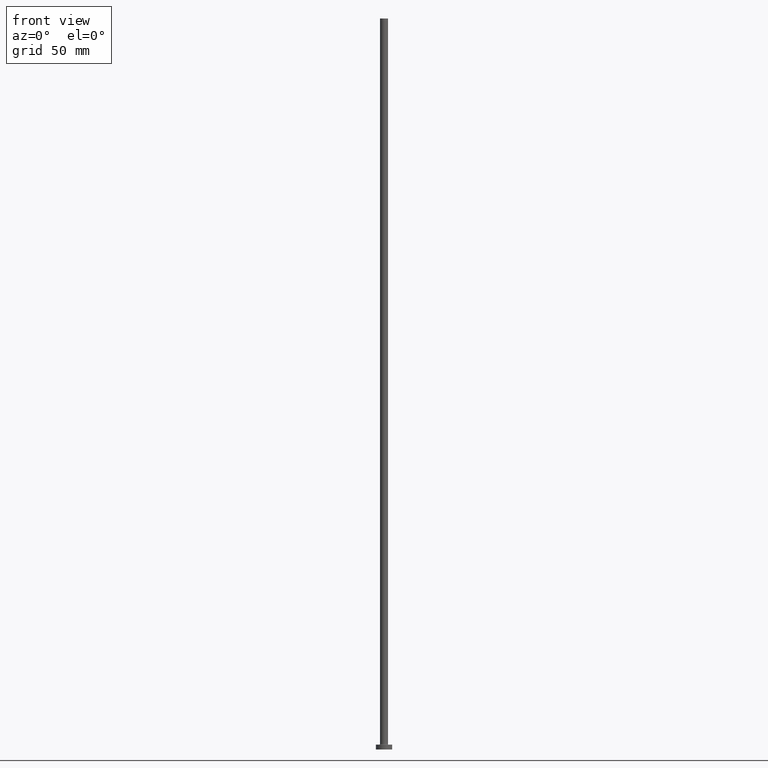
[diagram: clean part render]
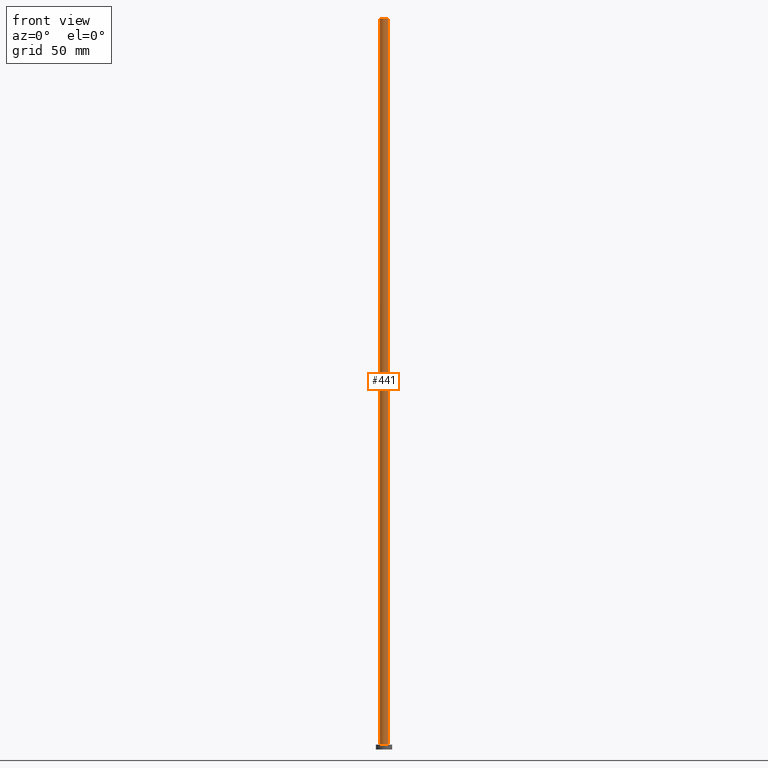
[diagram: same view with one face highlighted and labeled with its STEP entity id]
A machine part, front view. The second image highlights one B-rep face of the part: STEP entity #441.
In plain terms, the highlighted cylindrical surface (edge-blend (fillet) strip) has radius 2.5 mm, axis along (-0, -0, -1).
Its self-contained STEP definition (entity closure, byte-faithful):
#3 = AXIS2_PLACEMENT_3D ( 'NONE', #295, #426, #432 ) ;
#17 = ORIENTED_EDGE ( 'NONE', *, *, #177, .F. ) ;
#27 = CARTESIAN_POINT ( 'NONE',  ( -2.500000000000000000, 0.000000000000000000, 450.0000000000000000 ) ) ;
#34 = DIRECTION ( 'NONE',  ( -0.000000000000000000, -0.000000000000000000, -1.000000000000000000 ) ) ;
#40 = CARTESIAN_POINT ( 'NONE',  ( 0.000000000000000000, 0.000000000000000000, 3.300000000000025135 ) ) ;
#41 = DIRECTION ( 'NONE',  ( 0.000000000000000000, 0.000000000000000000, 1.000000000000000000 ) ) ;
#79 = CIRCLE ( 'NONE', #3, 2.500000000000000000 ) ;
#106 = CARTESIAN_POINT ( 'NONE',  ( 2.500000000000000000, 3.061616997868383141E-16, 450.0000000000000000 ) ) ;
#112 = DIRECTION ( 'NONE',  ( 1.000000000000000000, 0.000000000000000000, 0.000000000000000000 ) ) ;
#139 = DIRECTION ( 'NONE',  ( -0.000000000000000000, -0.000000000000000000, -1.000000000000000000 ) ) ;
#161 = LINE ( 'NONE', #270, #315 ) ;
#175 = AXIS2_PLACEMENT_3D ( 'NONE', #459, #34, #404 ) ;
#177 = EDGE_CURVE ( 'NONE', #281, #418, #161, .T. ) ;
#188 = VERTEX_POINT ( 'NONE', #342 ) ;
#232 = LINE ( 'NONE', #411, #439 ) ;
#238 = AXIS2_PLACEMENT_3D ( 'NONE', #40, #41, #112 ) ;
#246 = VERTEX_POINT ( 'NONE', #27 ) ;
#248 = CARTESIAN_POINT ( 'NONE',  ( 2.500000000000000000, 3.061616997868383141E-16, 3.300000000000025135 ) ) ;
#262 = FACE_OUTER_BOUND ( 'NONE', #450, .T. ) ;
#270 = CARTESIAN_POINT ( 'NONE',  ( 2.500000000000000000, 3.061616997868383141E-16, 450.0000000000000000 ) ) ;
#281 = VERTEX_POINT ( 'NONE', #106 ) ;
#295 = CARTESIAN_POINT ( 'NONE',  ( 0.000000000000000000, 0.000000000000000000, 450.0000000000000000 ) ) ;
#302 = DIRECTION ( 'NONE',  ( -0.000000000000000000, -0.000000000000000000, -1.000000000000000000 ) ) ;
#315 = VECTOR ( 'NONE', #139, 1000.000000000000000 ) ;
#332 = CYLINDRICAL_SURFACE ( 'NONE', #175, 2.500000000000000000 ) ;
#333 = EDGE_CURVE ( 'NONE', #246, #188, #232, .T. ) ;
#340 = ORIENTED_EDGE ( 'NONE', *, *, #333, .T. ) ;
#342 = CARTESIAN_POINT ( 'NONE',  ( -2.500000000000000000, 0.000000000000000000, 3.300000000000025135 ) ) ;
#404 = DIRECTION ( 'NONE',  ( -1.000000000000000000, 0.000000000000000000, 0.000000000000000000 ) ) ;
#405 = CIRCLE ( 'NONE', #238, 2.500000000000000000 ) ;
#411 = CARTESIAN_POINT ( 'NONE',  ( -2.500000000000000000, 0.000000000000000000, 450.0000000000000000 ) ) ;
#418 = VERTEX_POINT ( 'NONE', #248 ) ;
#421 = EDGE_CURVE ( 'NONE', #246, #281, #79, .T. ) ;
#422 = ORIENTED_EDGE ( 'NONE', *, *, #437, .T. ) ;
#426 = DIRECTION ( 'NONE',  ( 0.000000000000000000, 0.000000000000000000, 1.000000000000000000 ) ) ;
#432 = DIRECTION ( 'NONE',  ( 1.000000000000000000, 0.000000000000000000, 0.000000000000000000 ) ) ;
#437 = EDGE_CURVE ( 'NONE', #188, #418, #405, .T. ) ;
#439 = VECTOR ( 'NONE', #302, 1000.000000000000000 ) ;
#441 = ADVANCED_FACE ( 'NONE', ( #262 ), #332, .T. ) ;
#444 = ORIENTED_EDGE ( 'NONE', *, *, #421, .F. ) ;
#450 = EDGE_LOOP ( 'NONE', ( #17, #444, #340, #422 ) ) ;
#459 = CARTESIAN_POINT ( 'NONE',  ( 0.000000000000000000, 0.000000000000000000, 450.0000000000000000 ) ) ;